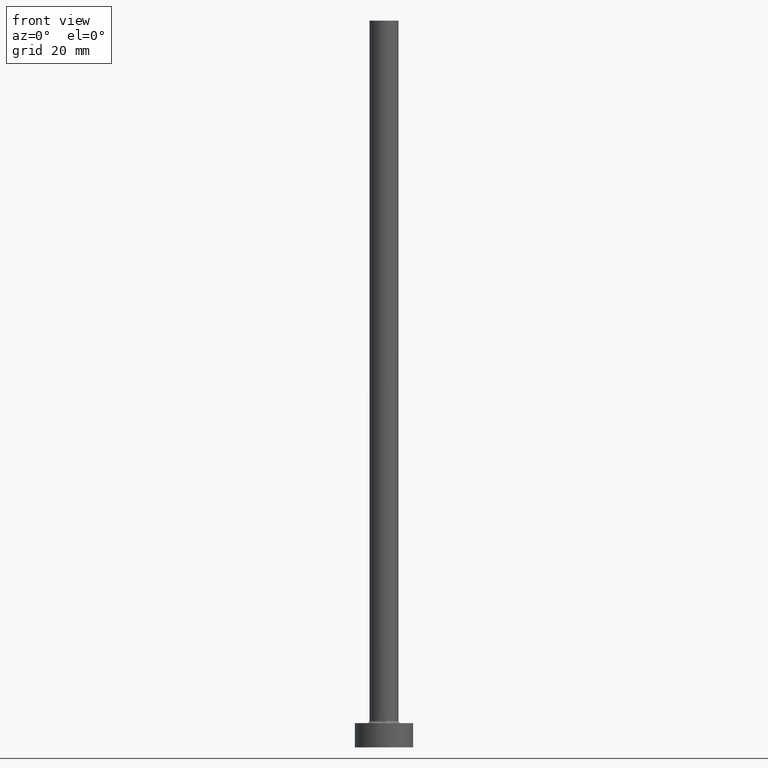
[diagram: clean part render]
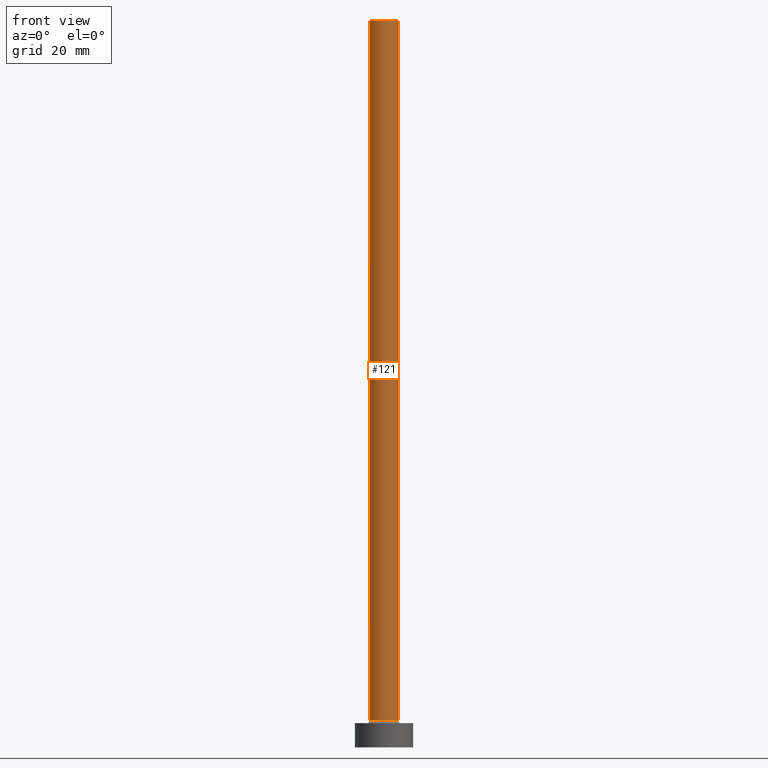
[diagram: same view with one face highlighted and labeled with its STEP entity id]
A machine part, front view. The second image highlights one B-rep face of the part: STEP entity #121.
In plain terms, the highlighted cylindrical surface (edge-blend (fillet) strip) has radius 3 mm, axis along (-0, -0, -1).
Its self-contained STEP definition (entity closure, byte-faithful):
#2 = DIRECTION ( 'NONE',  ( 0.000000000000000000, 0.000000000000000000, 1.000000000000000000 ) ) ;
#3 = DIRECTION ( 'NONE',  ( -1.000000000000000000, 0.000000000000000000, 0.000000000000000000 ) ) ;
#9 = CIRCLE ( 'NONE', #395, 3.000000000000000444 ) ;
#11 = DIRECTION ( 'NONE',  ( 0.000000000000000000, 0.000000000000000000, 1.000000000000000000 ) ) ;
#16 = CARTESIAN_POINT ( 'NONE',  ( 3.000000000000000444, 3.673940397442060361E-16, 150.0000000000000000 ) ) ;
#36 = CARTESIAN_POINT ( 'NONE',  ( -3.000000000000000444, 0.000000000000000000, 5.500000000000005329 ) ) ;
#48 = EDGE_CURVE ( 'NONE', #279, #162, #81, .T. ) ;
#49 = DIRECTION ( 'NONE',  ( -0.000000000000000000, -0.000000000000000000, -1.000000000000000000 ) ) ;
#52 = ORIENTED_EDGE ( 'NONE', *, *, #400, .F. ) ;
#53 = AXIS2_PLACEMENT_3D ( 'NONE', #178, #2, #142 ) ;
#59 = ORIENTED_EDGE ( 'NONE', *, *, #169, .F. ) ;
#81 = LINE ( 'NONE', #422, #231 ) ;
#108 = DIRECTION ( 'NONE',  ( 1.000000000000000000, 0.000000000000000000, 0.000000000000000000 ) ) ;
#110 = DIRECTION ( 'NONE',  ( -0.000000000000000000, -0.000000000000000000, -1.000000000000000000 ) ) ;
#112 = CYLINDRICAL_SURFACE ( 'NONE', #286, 3.000000000000000444 ) ;
#121 = ADVANCED_FACE ( 'NONE', ( #365 ), #112, .T. ) ;
#142 = DIRECTION ( 'NONE',  ( 1.000000000000000000, 0.000000000000000000, 0.000000000000000000 ) ) ;
#150 = CARTESIAN_POINT ( 'NONE',  ( 3.000000000000000444, 3.673940397442060361E-16, 150.0000000000000000 ) ) ;
#162 = VERTEX_POINT ( 'NONE', #36 ) ;
#169 = EDGE_CURVE ( 'NONE', #404, #177, #175, .T. ) ;
#175 = LINE ( 'NONE', #16, #368 ) ;
#177 = VERTEX_POINT ( 'NONE', #187 ) ;
#178 = CARTESIAN_POINT ( 'NONE',  ( 0.000000000000000000, 0.000000000000000000, 150.0000000000000000 ) ) ;
#187 = CARTESIAN_POINT ( 'NONE',  ( 3.000000000000000444, 3.673940397442060361E-16, 5.500000000000005329 ) ) ;
#231 = VECTOR ( 'NONE', #110, 1000.000000000000000 ) ;
#239 = ORIENTED_EDGE ( 'NONE', *, *, #425, .T. ) ;
#249 = CARTESIAN_POINT ( 'NONE',  ( 0.000000000000000000, 0.000000000000000000, 150.0000000000000000 ) ) ;
#279 = VERTEX_POINT ( 'NONE', #387 ) ;
#286 = AXIS2_PLACEMENT_3D ( 'NONE', #249, #399, #3 ) ;
#324 = CARTESIAN_POINT ( 'NONE',  ( 0.000000000000000000, 0.000000000000000000, 5.500000000000005329 ) ) ;
#365 = FACE_OUTER_BOUND ( 'NONE', #455, .T. ) ;
#368 = VECTOR ( 'NONE', #49, 1000.000000000000000 ) ;
#370 = CIRCLE ( 'NONE', #53, 3.000000000000000444 ) ;
#387 = CARTESIAN_POINT ( 'NONE',  ( -3.000000000000000444, 0.000000000000000000, 150.0000000000000000 ) ) ;
#395 = AXIS2_PLACEMENT_3D ( 'NONE', #324, #11, #108 ) ;
#399 = DIRECTION ( 'NONE',  ( -0.000000000000000000, -0.000000000000000000, -1.000000000000000000 ) ) ;
#400 = EDGE_CURVE ( 'NONE', #279, #404, #370, .T. ) ;
#404 = VERTEX_POINT ( 'NONE', #150 ) ;
#422 = CARTESIAN_POINT ( 'NONE',  ( -3.000000000000000444, 0.000000000000000000, 150.0000000000000000 ) ) ;
#425 = EDGE_CURVE ( 'NONE', #162, #177, #9, .T. ) ;
#450 = ORIENTED_EDGE ( 'NONE', *, *, #48, .T. ) ;
#455 = EDGE_LOOP ( 'NONE', ( #59, #52, #450, #239 ) ) ;